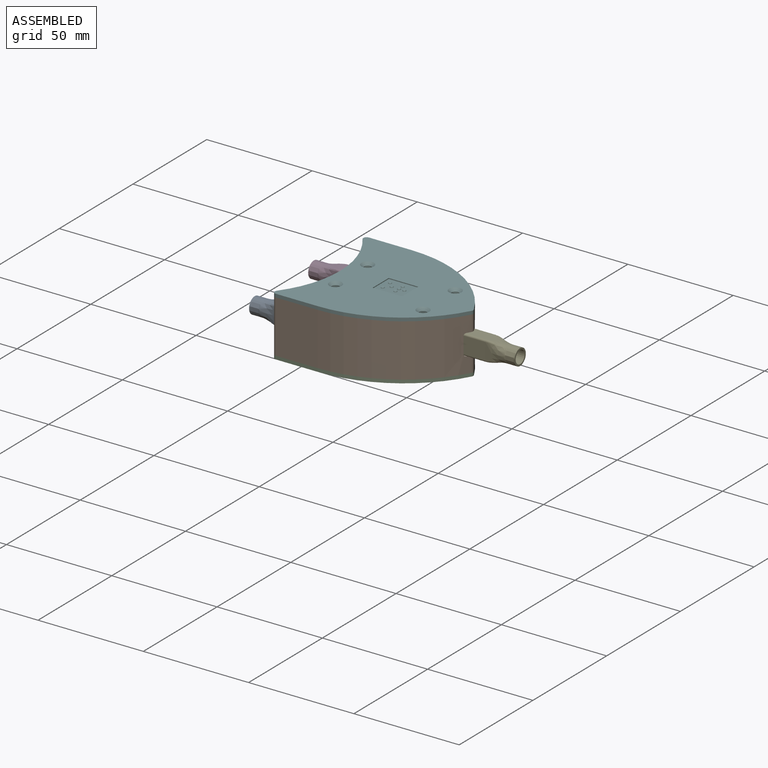
[diagram: assembled view]
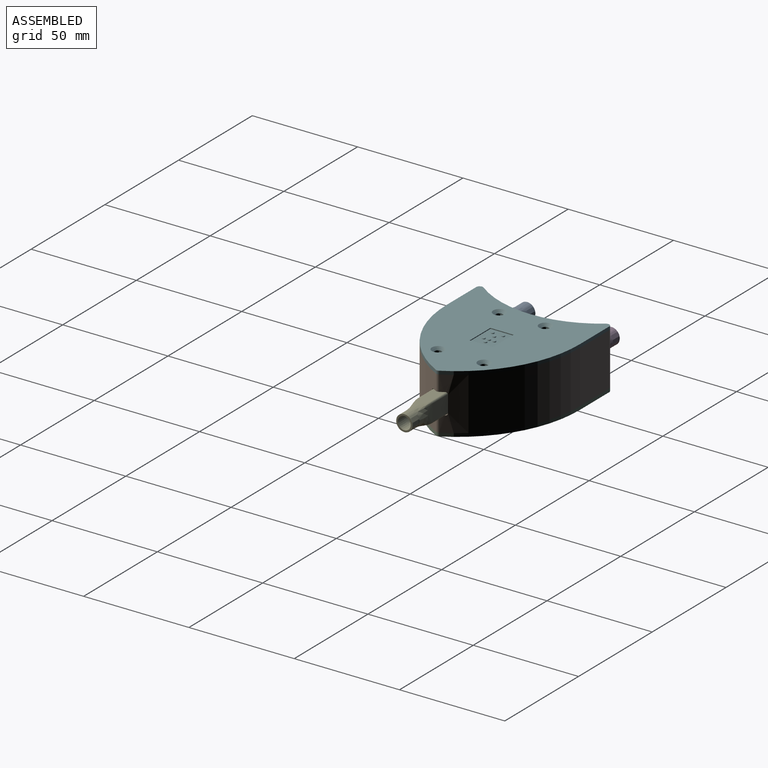
[diagram: assembled view, second angle]
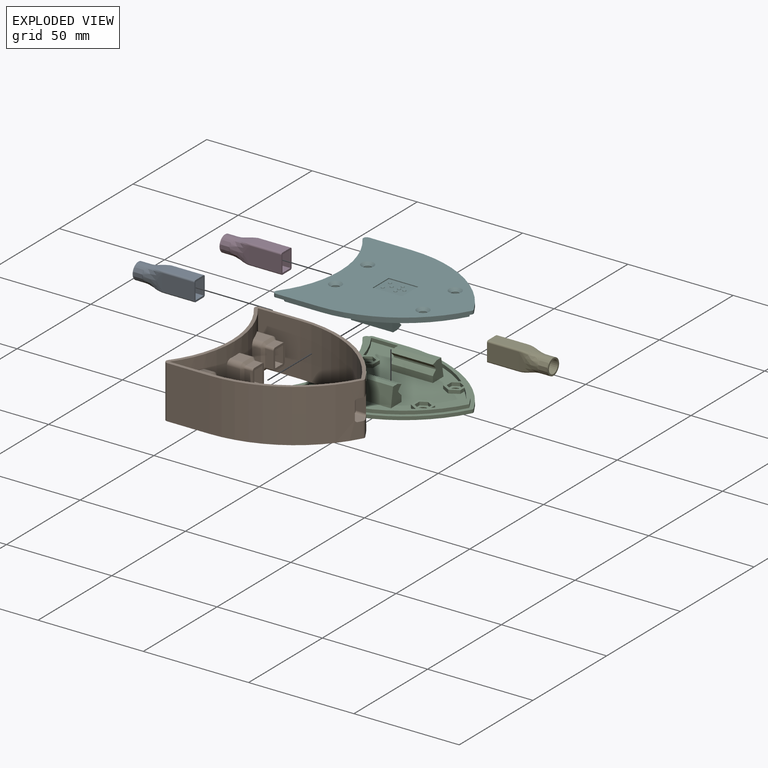
[diagram: exploded view]
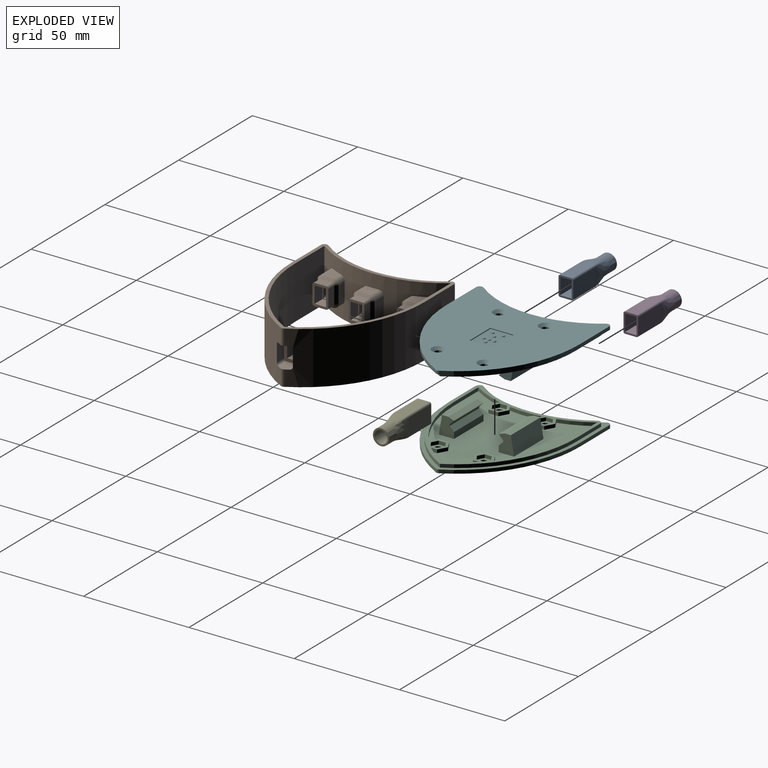
[diagram: exploded view, second angle]
ASSEMBLY  parts=6 mates=4
PART A: 39 faces, bbox 7.7x29.1x9.5 mm
  f0: plane 15.1x5.4mm, normal (0,0,-1), area 81.5mm2, adj f3,f19,f31,f33
  f1: plane 14.1x7.9mm, normal (-1,0,0), area 111.4mm2, adj f2,f3,f7,f9
  f2: plane 14.1x5.4mm, normal (0,0,1), area 76.1mm2, adj f1,f3,f8,f9
  f3: plane 9.5x7mm, normal (0,-1,0), area 23.3mm2, adj f0,f1,f2,f4,f5,f6,f7,f8
  f4: plane 15.1x7.9mm, normal (-1,0,0), area 119.3mm2, adj f3,f21,f31,f35
  f5: plane 15.1x7.9mm, normal (1,0,0), area 119.3mm2, adj f3,f16,f33,f37
  f6: plane 15.1x5.4mm, normal (0,0,1), area 81.5mm2, adj f3,f14,f35,f37
  f7: plane 14.1x5.4mm, normal (0,0,-1), area 76.1mm2, adj f1,f3,f8,f9
  f8: plane 14.1x7.9mm, normal (1,0,0), area 111.4mm2, adj f2,f3,f7,f9
  f9: plane 7.9x5.4mm, normal (0,-1,0), area 10mm2, adj f1,f2,f7,f8,f10,f11,f12,f13
  f10: plane 7.1x1mm, normal (-1,0,0), area 7.1mm2, adj f9,f11,f13,f17
  f11: plane 4.6x1mm, normal (0,0,-1), area 4.6mm2, adj f9,f10,f12,f15
  f12: plane 7.1x1mm, normal (1,0,0), area 7.1mm2, adj f9,f11,f13,f20
  f13: plane 4.6x1mm, normal (0,0,1), area 4.6mm2, adj f9,f10,f12,f18
  f14: bspline ~9x7mm, area 45.2mm2, adj f6,f26,f36,f38
  f15: bspline ~9x4.6mm, area 36.4mm2, adj f11,f17,f20,f22
  f16: bspline ~9.5x9mm, area 69.4mm2, adj f5,f27,f34,f38
  f17: bspline ~9x7.1mm, area 58.2mm2, adj f10,f15,f18,f29
  f18: bspline ~9x4.6mm, area 36.4mm2, adj f13,f17,f20,f24
  f19: bspline ~9x7mm, area 45.2mm2, adj f0,f28,f32,f34
  f20: bspline ~9x7.1mm, area 58.2mm2, adj f12,f15,f18,f23
  f21: bspline ~9.5x9mm, area 69.4mm2, adj f4,f25,f32,f36
  f22: extruded ~5x3.32mm, area 17.5mm2, adj f15,f23,f29,f30
  f23: extruded ~5.12x5mm, area 30.4mm2, adj f20,f22,f24,f30
  f24: extruded ~5x3.32mm, area 17.5mm2, adj f18,f23,f29,f30
  f25: extruded ~6.46x5mm, area 38.3mm2, adj f21,f26,f28,f30
  f26: extruded ~5x4.19mm, area 22.1mm2, adj f14,f25,f27,f30
  f27: extruded ~6.46x5mm, area 38.3mm2, adj f16,f26,f28,f30
  f28: extruded ~5x4.19mm, area 22.1mm2, adj f19,f25,f27,f30
  f29: extruded ~5.12x5mm, area 30.4mm2, adj f17,f22,f24,f30
  f30: plane 7.7x7.7mm, normal (0,1,0), area 17.3mm2, adj f22,f23,f24,f25,f26,f27,f28,f29
  f31: cylinder r=0.8mm len=15.1mm, axis (0,-1,0), area 19mm2, adj f0,f3,f4,f32
  f32: bspline ~10.88x1.52mm, area 4.5mm2, adj f19,f21,f31
  f33: cylinder r=0.8mm len=15.1mm, axis (0,1,0), area 19mm2, adj f0,f3,f5,f34
  f34: bspline ~10.88x1.52mm, area 4.5mm2, adj f16,f19,f33
  f35: cylinder r=0.8mm len=15.1mm, axis (0,1,0), area 19mm2, adj f3,f4,f6,f36
  f36: bspline ~10.88x1.52mm, area 4.5mm2, adj f14,f21,f35
  f37: cylinder r=0.8mm len=15.1mm, axis (0,-1,0), area 19mm2, adj f3,f5,f6,f38
  f38: bspline ~10.88x1.52mm, area 4.5mm2, adj f14,f16,f37
PART B: 188 faces, bbox 73.2x63.2x25 mm
  f0: cylinder r=58.27mm len=51.41mm, axis (0,0,-1), area 1540.4mm2, adj f1,f2,f7,f11,f12,f180,f184,f185
  f1: cylinder r=1.6mm len=7.45mm, axis (0,0,-1), area 11.7mm2, adj f0,f3,f12,f184
  f2: cylinder r=1.6mm len=7.45mm, axis (0,0,-1), area 11.7mm2, adj f0,f3,f7,f180
  f3: cylinder r=58.27mm len=51.41mm, axis (0,0,-1), area 1540.4mm2, adj f1,f2,f7,f9,f12,f180,f181,f182
  f4: cylinder r=56.67mm len=50mm, axis (0,0,-1), area 1464.5mm2, adj f5,f7,f8,f12,f168,f174,f175,f178
  f5: cylinder r=56.67mm len=50mm, axis (0,0,-1), area 1464.5mm2, adj f4,f7,f12,f13,f169,f172,f173,f178
  f6: cylinder r=50mm len=60mm, axis (0,0,-1), area 1243.7mm2, adj f7,f8,f12,f13,f34,f35,f36,f37
  f7: plane 73.2x63.2mm, normal (0,0,1), area 371mm2, adj f0,f2,f3,f4,f5,f6,f8,f9
  f8: plane 25x20mm, normal (0,1,0), area 500mm2, adj f4,f6,f7,f12
  f9: plane 25x20mm, normal (0,1,0), area 500mm2, adj f3,f7,f10,f12
  f10: cylinder r=1.6mm len=25mm, axis (0,0,-1), area 88.6mm2, adj f7,f9,f12,f14
  f11: plane 25x20mm, normal (0,-1,0), area 500mm2, adj f0,f7,f12,f15
  f12: plane 73.2x63.2mm, normal (0,0,-1), area 371mm2, adj f0,f1,f3,f4,f5,f6,f8,f9
  f13: plane 25x20mm, normal (0,-1,0), area 500mm2, adj f5,f6,f7,f12
  f14: cylinder r=48.4mm len=58.08mm, axis (0,0,-1), area 1314.7mm2, adj f7,f10,f12,f15,f16,f17,f18,f19
  f15: cylinder r=1.6mm len=25mm, axis (0,0,-1), area 88.6mm2, adj f7,f11,f12,f14
  f16: cylinder r=1.1mm len=6.95mm, axis (1,0,0), area 11.9mm2, adj f14,f17,f21,f78
  f17: plane 7.9x6.95mm, normal (0,-1,0), area 54.9mm2, adj f14,f16,f18,f78
  f18: cylinder r=1.1mm len=6.95mm, axis (1,0,0), area 11.9mm2, adj f14,f17,f19,f78
  f19: plane 6.88x5.4mm, normal (0,0,-1), area 36.9mm2, adj f14,f18,f20,f78
  f20: cylinder r=1.1mm len=6.95mm, axis (1,0,0), area 11.9mm2, adj f14,f19,f22,f78
  f21: plane 6.88x5.4mm, normal (0,0,1), area 36.9mm2, adj f14,f16,f23,f78
  f22: plane 7.9x6.95mm, normal (0,1,0), area 54.9mm2, adj f14,f20,f23,f78
  f23: cylinder r=1.1mm len=6.95mm, axis (1,0,0), area 11.9mm2, adj f14,f21,f22,f78
  f24: plane 8.28x5.44mm, normal (0,0,1), area 37.8mm2, adj f14,f25,f113,f134
  f25: cylinder r=1.1mm len=8.89mm, axis (1,0,0), area 14.8mm2, adj f14,f24,f26,f113
  f26: plane 8.89x7.9mm, normal (0,-1,0), area 70.2mm2, adj f14,f25,f27,f113
  f27: cylinder r=1.1mm len=8.89mm, axis (-1,0,0), area 14.8mm2, adj f14,f26,f28,f113
  f28: plane 8.28x5.44mm, normal (0,0,-1), area 37.8mm2, adj f14,f27,f113,f136
  f29: cylinder r=1.1mm len=8.89mm, axis (1,0,0), area 14.8mm2, adj f14,f30,f33,f40
  f30: plane 8.89x7.9mm, normal (0,1,0), area 70.2mm2, adj f14,f29,f31,f40
  f31: cylinder r=1.1mm len=8.89mm, axis (-1,0,0), area 14.8mm2, adj f14,f30,f32,f40
  f32: plane 8.28x5.44mm, normal (0,0,1), area 37.8mm2, adj f14,f31,f40,f61
  f33: plane 8.28x5.44mm, normal (0,0,-1), area 37.8mm2, adj f14,f29,f40,f63
  f34: cylinder r=2.3mm len=8.53mm, axis (-1,0,0), area 28.6mm2, adj f6,f35,f42,f66
  f35: plane 8.53x7.9mm, normal (0,-1,0), area 67.4mm2, adj f6,f34,f36,f64
  f36: cylinder r=2.3mm len=8.53mm, axis (-1,0,0), area 28.6mm2, adj f6,f35,f45,f65
  f37: plane 7.9x4.12mm, normal (0,1,0), area 32.6mm2, adj f6,f38,f39,f71
  f38: cylinder r=2.3mm len=4.91mm, axis (-1,0,0), area 16.3mm2, adj f6,f37,f42,f70
  f39: cylinder r=2.3mm len=4.91mm, axis (-1,0,0), area 16.3mm2, adj f6,f37,f45,f69
  f40: plane 10.1x7.6mm, normal (-1,0,0), area 43.1mm2, adj f29,f30,f31,f32,f33,f43,f44,f46
  f41: plane 7.9x5.4mm, normal (1,0,0), area 10mm2, adj f43,f44,f46,f47,f48,f49,f50,f59
  f42: plane 7.28x5.4mm, normal (0,0,1), area 32.6mm2, adj f6,f34,f38,f68
  f43: plane 4.6x0.8mm, normal (0,0,1), area 3.7mm2, adj f40,f41,f44,f46
  f44: plane 7.1x0.8mm, normal (0,-1,0), area 5.7mm2, adj f40,f41,f43,f47
  f45: plane 7.28x5.4mm, normal (0,0,-1), area 32.6mm2, adj f6,f36,f39,f67
  f46: plane 7.1x0.8mm, normal (0,1,0), area 5.7mm2, adj f40,f41,f43,f47
  f47: plane 4.6x0.8mm, normal (0,0,-1), area 3.7mm2, adj f40,f41,f44,f46
  f48: plane 5.4x5.2mm, normal (0,0,-1), area 28.1mm2, adj f41,f49,f59,f60
  f49: plane 7.9x5.2mm, normal (0,-1,0), area 41.1mm2, adj f41,f48,f50,f60
  f50: plane 5.4x5.2mm, normal (0,0,1), area 28.1mm2, adj f41,f49,f59,f60
  f51: cylinder r=1.1mm len=4mm, axis (-1,0,0), area 6.9mm2, adj f52,f58,f60,f69
  f52: plane 7.9x4mm, normal (0,1,0), area 31.6mm2, adj f51,f53,f60,f71
  f53: cylinder r=1.1mm len=4mm, axis (-1,0,0), area 6.9mm2, adj f52,f54,f60,f70
  f54: plane 5.4x4mm, normal (0,0,1), area 21.6mm2, adj f53,f55,f60,f68
  f55: cylinder r=1.1mm len=4mm, axis (-1,0,0), area 6.9mm2, adj f54,f56,f60,f66
  f56: plane 7.9x4mm, normal (0,-1,0), area 31.6mm2, adj f55,f57,f60,f64
  f57: cylinder r=1.1mm len=4mm, axis (-1,0,0), area 6.9mm2, adj f56,f58,f60,f65
  f58: plane 5.4x4mm, normal (0,0,-1), area 21.6mm2, adj f51,f57,f60,f67
  f59: plane 7.9x5.2mm, normal (0,1,0), area 41.1mm2, adj f41,f48,f50,f60
  f60: plane 10.1x7.6mm, normal (1,0,0), area 33.1mm2, adj f48,f49,f50,f51,f52,f53,f54,f55
  f61: cylinder r=1.1mm len=5.81mm, axis (1,0,0), area 9.5mm2, adj f14,f32,f40,f62
  f62: plane 7.9x5.41mm, normal (0,-1,0), area 42.8mm2, adj f14,f40,f61,f63
  f63: cylinder r=1.1mm len=5.81mm, axis (1,0,0), area 9.5mm2, adj f14,f33,f40,f62
  f64: plane 7.9x1.2mm, normal (0.71,-0.71,0), area 13.4mm2, adj f35,f56,f65,f66
  f65: cone r=1.1mm half-angle=45deg, axis (-1,0,0), area 4.5mm2, adj f36,f57,f64,f67
  f66: cone r=1.1mm half-angle=45deg, axis (-1,0,0), area 4.5mm2, adj f34,f55,f64,f68
  f67: plane 5.4x1.2mm, normal (0.71,0,-0.71), area 9.2mm2, adj f45,f58,f65,f69
  f68: plane 5.4x1.2mm, normal (0.71,0,0.71), area 9.2mm2, adj f42,f54,f66,f70
  f69: cone r=1.1mm half-angle=45deg, axis (-1,0,0), area 4.5mm2, adj f39,f51,f67,f71
  f70: cone r=1.1mm half-angle=45deg, axis (-1,0,0), area 4.5mm2, adj f38,f53,f68,f71
  f71: plane 7.9x1.2mm, normal (0.71,0.71,0), area 13.4mm2, adj f37,f52,f69,f70
  f72: plane 7.9x6.25mm, normal (0,1,0), area 49.4mm2, adj f6,f73,f77,f106
  f73: cylinder r=2.3mm len=6.25mm, axis (-1,0,0), area 22.3mm2, adj f6,f72,f80,f105
  f74: cylinder r=2.3mm len=6.25mm, axis (-1,0,0), area 22.3mm2, adj f6,f75,f80,f101
  f75: plane 7.9x6.25mm, normal (0,-1,0), area 49.4mm2, adj f6,f74,f76,f99
  f76: cylinder r=2.3mm len=6.25mm, axis (-1,0,0), area 22.3mm2, adj f6,f75,f83,f100
  f77: cylinder r=2.3mm len=6.25mm, axis (-1,0,0), area 22.3mm2, adj f6,f72,f83,f104
  f78: plane 10.1x7.6mm, normal (-1,0,0), area 43.1mm2, adj f16,f17,f18,f19,f20,f21,f22,f23
  f79: plane 7.9x5.4mm, normal (1,0,0), area 10mm2, adj f81,f82,f84,f85,f86,f87,f88,f97
  f80: plane 6.07x5.4mm, normal (0,0,1), area 32.5mm2, adj f6,f73,f74,f103
  f81: plane 4.6x0.8mm, normal (0,0,1), area 3.7mm2, adj f78,f79,f82,f84
  f82: plane 7.1x0.8mm, normal (0,-1,0), area 5.7mm2, adj f78,f79,f81,f85
  f83: plane 6.07x5.4mm, normal (0,0,-1), area 32.5mm2, adj f6,f76,f77,f102
  f84: plane 7.1x0.8mm, normal (0,1,0), area 5.7mm2, adj f78,f79,f81,f85
  f85: plane 4.6x0.8mm, normal (0,0,-1), area 3.7mm2, adj f78,f79,f82,f84
  f86: plane 5.4x5.2mm, normal (0,0,-1), area 28.1mm2, adj f79,f87,f97,f98
  f87: plane 7.9x5.2mm, normal (0,-1,0), area 41.1mm2, adj f79,f86,f88,f98
  f88: plane 5.4x5.2mm, normal (0,0,1), area 28.1mm2, adj f79,f87,f97,f98
  f89: cylinder r=1.1mm len=4mm, axis (-1,0,0), area 6.9mm2, adj f90,f96,f98,f104
  f90: plane 7.9x4mm, normal (0,1,0), area 31.6mm2, adj f89,f91,f98,f106
  f91: cylinder r=1.1mm len=4mm, axis (-1,0,0), area 6.9mm2, adj f90,f92,f98,f105
  f92: plane 5.4x4mm, normal (0,0,1), area 21.6mm2, adj f91,f93,f98,f103
  f93: cylinder r=1.1mm len=4mm, axis (-1,0,0), area 6.9mm2, adj f92,f94,f98,f101
  f94: plane 7.9x4mm, normal (0,-1,0), area 31.6mm2, adj f93,f95,f98,f99
  f95: cylinder r=1.1mm len=4mm, axis (-1,0,0), area 6.9mm2, adj f94,f96,f98,f100
  f96: plane 5.4x4mm, normal (0,0,-1), area 21.6mm2, adj f89,f95,f98,f102
  f97: plane 7.9x5.2mm, normal (0,1,0), area 41.1mm2, adj f79,f86,f88,f98
  f98: plane 10.1x7.6mm, normal (1,0,0), area 33.1mm2, adj f86,f87,f88,f89,f90,f91,f92,f93
  f99: plane 7.9x1.2mm, normal (0.71,-0.71,0), area 13.4mm2, adj f75,f94,f100,f101
  f100: cone r=1.1mm half-angle=45deg, axis (-1,0,0), area 4.5mm2, adj f76,f95,f99,f102
  f101: cone r=1.1mm half-angle=45deg, axis (-1,0,0), area 4.5mm2, adj f74,f93,f99,f103
  f102: plane 5.4x1.2mm, normal (0.71,0,-0.71), area 9.2mm2, adj f83,f96,f100,f104
  f103: plane 5.4x1.2mm, normal (0.71,0,0.71), area 9.2mm2, adj f80,f92,f101,f105
  f104: cone r=1.1mm half-angle=45deg, axis (-1,0,0), area 4.5mm2, adj f77,f89,f102,f106
  f105: cone r=1.1mm half-angle=45deg, axis (-1,0,0), area 4.5mm2, adj f73,f91,f103,f106
  f106: plane 7.9x1.2mm, normal (0.71,0.71,0), area 13.4mm2, adj f72,f90,f104,f105
  f107: plane 8.53x7.9mm, normal (0,1,0), area 67.4mm2, adj f6,f108,f109,f144
  f108: cylinder r=2.3mm len=8.53mm, axis (-1,0,0), area 28.6mm2, adj f6,f107,f115,f143
  f109: cylinder r=2.3mm len=8.53mm, axis (-1,0,0), area 28.6mm2, adj f6,f107,f118,f142
  f110: cylinder r=2.3mm len=4.91mm, axis (-1,0,0), area 16.3mm2, adj f6,f111,f115,f139
  f111: plane 7.9x4.12mm, normal (0,-1,0), area 32.6mm2, adj f6,f110,f112,f137
  f112: cylinder r=2.3mm len=4.91mm, axis (-1,0,0), area 16.3mm2, adj f6,f111,f118,f138
  f113: plane 10.1x7.6mm, normal (-1,0,0), area 43.1mm2, adj f24,f25,f26,f27,f28,f116,f117,f119
  f114: plane 7.9x5.4mm, normal (1,0,0), area 10mm2, adj f116,f117,f119,f120,f121,f122,f123,f132
  f115: plane 7.28x5.4mm, normal (0,0,1), area 32.6mm2, adj f6,f108,f110,f141
  f116: plane 4.6x0.8mm, normal (0,0,1), area 3.7mm2, adj f113,f114,f117,f119
  f117: plane 7.1x0.8mm, normal (0,-1,0), area 5.7mm2, adj f113,f114,f116,f120
  f118: plane 7.28x5.4mm, normal (0,0,-1), area 32.6mm2, adj f6,f109,f112,f140
  f119: plane 7.1x0.8mm, normal (0,1,0), area 5.7mm2, adj f113,f114,f116,f120
  f120: plane 4.6x0.8mm, normal (0,0,-1), area 3.7mm2, adj f113,f114,f117,f119
  f121: plane 5.4x5.2mm, normal (0,0,-1), area 28.1mm2, adj f114,f122,f132,f133
  f122: plane 7.9x5.2mm, normal (0,-1,0), area 41.1mm2, adj f114,f121,f123,f133
  f123: plane 5.4x5.2mm, normal (0,0,1), area 28.1mm2, adj f114,f122,f132,f133
  f124: cylinder r=1.1mm len=4mm, axis (-1,0,0), area 6.9mm2, adj f125,f131,f133,f142
  f125: plane 7.9x4mm, normal (0,1,0), area 31.6mm2, adj f124,f126,f133,f144
  f126: cylinder r=1.1mm len=4mm, axis (-1,0,0), area 6.9mm2, adj f125,f127,f133,f143
  f127: plane 5.4x4mm, normal (0,0,1), area 21.6mm2, adj f126,f128,f133,f141
  f128: cylinder r=1.1mm len=4mm, axis (-1,0,0), area 6.9mm2, adj f127,f129,f133,f139
  f129: plane 7.9x4mm, normal (0,-1,0), area 31.6mm2, adj f128,f130,f133,f137
  f130: cylinder r=1.1mm len=4mm, axis (-1,0,0), area 6.9mm2, adj f129,f131,f133,f138
  f131: plane 5.4x4mm, normal (0,0,-1), area 21.6mm2, adj f124,f130,f133,f140
  f132: plane 7.9x5.2mm, normal (0,1,0), area 41.1mm2, adj f114,f121,f123,f133
  f133: plane 10.1x7.6mm, normal (1,0,0), area 33.1mm2, adj f121,f122,f123,f124,f125,f126,f127,f128
  f134: cylinder r=1.1mm len=5.81mm, axis (1,0,0), area 9.5mm2, adj f14,f24,f113,f135
  f135: plane 7.9x5.41mm, normal (0,1,0), area 42.8mm2, adj f14,f113,f134,f136
  f136: cylinder r=1.1mm len=5.81mm, axis (1,0,0), area 9.5mm2, adj f14,f28,f113,f135
  f137: plane 7.9x1.2mm, normal (0.71,-0.71,0), area 13.4mm2, adj f111,f129,f138,f139
  f138: cone r=1.1mm half-angle=45deg, axis (-1,0,0), area 4.5mm2, adj f112,f130,f137,f140
  f139: cone r=1.1mm half-angle=45deg, axis (-1,0,0), area 4.5mm2, adj f110,f128,f137,f141
  f140: plane 5.4x1.2mm, normal (0.71,0,-0.71), area 9.2mm2, adj f118,f131,f138,f142
  f141: plane 5.4x1.2mm, normal (0.71,0,0.71), area 9.2mm2, adj f115,f127,f139,f143
  f142: cone r=1.1mm half-angle=45deg, axis (-1,0,0), area 4.5mm2, adj f109,f124,f140,f144
  f143: cone r=1.1mm half-angle=45deg, axis (-1,0,0), area 4.5mm2, adj f108,f126,f141,f144
  f144: plane 7.9x1.2mm, normal (0.71,0.71,0), area 13.4mm2, adj f107,f125,f142,f143
  f145: plane 7.9x1.2mm, normal (-0.71,-0.71,0), area 13.4mm2, adj f146,f147,f161,f175
  f146: cone r=1.1mm half-angle=45deg, axis (1,0,0), area 4.5mm2, adj f145,f148,f160,f174
  f147: cone r=1.1mm half-angle=45deg, axis (1,0,0), area 4.5mm2, adj f145,f149,f162,f168
  f148: plane 5.4x1.2mm, normal (-0.71,0,0.71), area 9.2mm2, adj f146,f150,f159,f179
  f149: plane 5.4x1.2mm, normal (-0.71,0,-0.71), area 9.2mm2, adj f147,f151,f155,f178
  f150: cone r=1.1mm half-angle=45deg, axis (1,0,0), area 4.5mm2, adj f148,f152,f158,f173
  f151: cone r=1.1mm half-angle=45deg, axis (1,0,0), area 4.5mm2, adj f149,f152,f156,f169
  f152: plane 7.9x1.2mm, normal (-0.71,0.71,0), area 13.4mm2, adj f150,f151,f157,f172
  f153: plane 10.1x7.6mm, normal (-1,0,0), area 33.1mm2, adj f154,f155,f156,f157,f158,f159,f160,f161
  f154: plane 7.9x5.2mm, normal (0,-1,0), area 41.1mm2, adj f153,f163,f165,f176
  f155: plane 5.4x4mm, normal (0,0,-1), area 21.6mm2, adj f149,f153,f156,f162
  f156: cylinder r=1.1mm len=4mm, axis (1,0,0), area 6.9mm2, adj f151,f153,f155,f157
  f157: plane 7.9x4mm, normal (0,1,0), area 31.6mm2, adj f152,f153,f156,f158
  f158: cylinder r=1.1mm len=4mm, axis (1,0,0), area 6.9mm2, adj f150,f153,f157,f159
  f159: plane 5.4x4mm, normal (0,0,1), area 21.6mm2, adj f148,f153,f158,f160
  f160: cylinder r=1.1mm len=4mm, axis (1,0,0), area 6.9mm2, adj f146,f153,f159,f161
  f161: plane 7.9x4mm, normal (0,-1,0), area 31.6mm2, adj f145,f153,f160,f162
  f162: cylinder r=1.1mm len=4mm, axis (1,0,0), area 6.9mm2, adj f147,f153,f155,f161
  f163: plane 5.4x5.2mm, normal (0,0,1), area 28.1mm2, adj f153,f154,f164,f176
  f164: plane 7.9x5.2mm, normal (0,1,0), area 41.1mm2, adj f153,f163,f165,f176
  f165: plane 5.4x5.2mm, normal (0,0,-1), area 28.1mm2, adj f153,f154,f164,f176
  f166: plane 4.6x0.8mm, normal (0,0,-1), area 3.7mm2, adj f167,f170,f176,f177
  f167: plane 7.1x0.8mm, normal (0,-1,0), area 5.7mm2, adj f166,f171,f176,f177
  f168: cylinder r=2.3mm len=4.46mm, axis (1,0,0), area 13.5mm2, adj f4,f147,f175,f178
  f169: cylinder r=2.3mm len=4.46mm, axis (1,0,0), area 13.5mm2, adj f5,f151,f172,f178
  f170: plane 7.1x0.8mm, normal (0,1,0), area 5.7mm2, adj f166,f171,f176,f177
  f171: plane 4.6x0.8mm, normal (0,0,1), area 3.7mm2, adj f167,f170,f176,f177
  f172: plane 7.9x2.99mm, normal (0,1,0), area 23.6mm2, adj f5,f152,f169,f173
  f173: cylinder r=2.3mm len=4.46mm, axis (1,0,0), area 13.5mm2, adj f5,f150,f172,f179
  f174: cylinder r=2.3mm len=4.46mm, axis (1,0,0), area 13.5mm2, adj f4,f146,f175,f179
  f175: plane 7.9x2.99mm, normal (0,-1,0), area 23.6mm2, adj f4,f145,f168,f174
  f176: plane 7.9x5.4mm, normal (-1,0,0), area 10mm2, adj f154,f163,f164,f165,f166,f167,f170,f171
  f177: plane 10.1x7.6mm, normal (1,0,0), area 43.1mm2, adj f166,f167,f170,f171,f180,f181,f182,f183
  f178: plane 6x5.4mm, normal (0,0,-1), area 28.3mm2, adj f4,f5,f149,f168,f169
  f179: plane 6x5.4mm, normal (0,0,1), area 28.3mm2, adj f4,f5,f148,f173,f174
  f180: plane 6.8x5.4mm, normal (0,0,-1), area 33.8mm2, adj f0,f2,f3,f177,f181,f186
  f181: cylinder r=1.1mm len=5.53mm, axis (1,0,0), area 9mm2, adj f3,f177,f180,f182
  f182: plane 7.9x4.87mm, normal (0,-1,0), area 38.4mm2, adj f3,f177,f181,f183
  f183: cylinder r=1.1mm len=5.53mm, axis (1,0,0), area 9mm2, adj f3,f177,f182,f184
  f184: plane 6.8x5.4mm, normal (0,0,1), area 33.8mm2, adj f0,f1,f3,f177,f183,f187
  f185: plane 7.9x4.87mm, normal (0,1,0), area 38.4mm2, adj f0,f177,f186,f187
  f186: cylinder r=1.1mm len=5.53mm, axis (1,0,0), area 9mm2, adj f0,f177,f180,f185
  f187: cylinder r=1.1mm len=5.53mm, axis (1,0,0), area 9mm2, adj f0,f177,f184,f185
PART C: 121 faces, bbox 73.2x63.2x10.7 mm
  f0: plane 64.5x56.4mm, normal (0,0,-1), area 2032.4mm2, adj f9,f10,f11,f12,f13,f14,f30,f31
  f1: sphere r=0.81mm, area 2mm2, adj f95,f102
  f2: sphere r=0.81mm, area 2mm2, adj f95,f101
  f3: sphere r=0.81mm, area 2mm2, adj f95,f100
  f4: sphere r=0.81mm, area 2mm2, adj f95,f99
  f5: sphere r=0.81mm, area 2mm2, adj f95,f98
  f6: sphere r=0.81mm, area 2mm2, adj f95,f97
  f7: sphere r=0.81mm, area 2mm2, adj f95,f96
  f8: plane 73.2x63.2mm, normal (0,0,1), area 3036.2mm2, adj f15,f16,f17,f18,f19,f20,f21,f22
  f9: cylinder r=54.87mm len=35.14mm, axis (0,0,1), area 61mm2, adj f0,f31,f34,f79
  f10: cylinder r=54.87mm len=35.14mm, axis (0,0,1), area 61mm2, adj f0,f30,f34,f68
  f11: cylinder r=54.87mm len=11.37mm, axis (0,0,1), area 22.7mm2, adj f0,f32,f34,f69
  f12: cylinder r=51.8mm len=15.4mm, axis (0,0,1), area 24.7mm2, adj f0,f34,f41,f54
  f13: cylinder r=51.8mm len=14.77mm, axis (0,0,1), area 26mm2, adj f0,f31,f34,f55
  f14: cylinder r=51.8mm len=14.77mm, axis (0,0,1), area 26mm2, adj f0,f30,f34,f42
  f15: cylinder r=48.4mm len=58.08mm, axis (0,0,-1), area 99.7mm2, adj f8,f16,f22,f23
  f16: cylinder r=1.6mm len=2.56mm, axis (0,0,-1), area 5.7mm2, adj f8,f15,f17,f23
  f17: plane 20x1.6mm, normal (0,-1,0), area 32mm2, adj f8,f16,f18,f23
  f18: cylinder r=58.27mm len=51.41mm, axis (0,0,-1), area 100.8mm2, adj f8,f17,f19,f23
  f19: cylinder r=1.6mm len=1.6mm, axis (0,0,-1), area 2.5mm2, adj f8,f18,f20,f23
  f20: cylinder r=58.27mm len=51.41mm, axis (0,0,-1), area 100.8mm2, adj f8,f19,f21,f23
  f21: plane 20x1.6mm, normal (0,1,0), area 32mm2, adj f8,f20,f22,f23
  f22: cylinder r=1.6mm len=2.56mm, axis (0,0,-1), area 5.7mm2, adj f8,f15,f21,f23
  f23: plane 73.2x63.2mm, normal (0,0,-1), area 420.3mm2, adj f15,f16,f17,f18,f19,f20,f21,f22
  f24: cylinder r=56.47mm len=49.77mm, axis (0,0,1), area 97.5mm2, adj f23,f25,f33,f34
  f25: cylinder r=56.47mm len=49.77mm, axis (0,0,1), area 97.5mm2, adj f23,f24,f26,f34
  f26: plane 16.55x1.6mm, normal (0,1,0), area 26.5mm2, adj f23,f25,f27,f34
  f27: cylinder r=1.6mm len=2.47mm, axis (0,0,1), area 5.5mm2, adj f23,f26,f28,f34
  f28: cylinder r=50.2mm len=54.66mm, axis (0,0,1), area 92.5mm2, adj f23,f27,f29,f34
  f29: cylinder r=1.6mm len=2.47mm, axis (0,0,1), area 5.5mm2, adj f23,f28,f33,f34
  f30: plane 16.55x1.6mm, normal (0,1,0), area 26.5mm2, adj f0,f10,f14,f34
  f31: plane 16.55x1.6mm, normal (0,-1,0), area 26.5mm2, adj f0,f9,f13,f34
  f32: cylinder r=54.87mm len=11.37mm, axis (0,0,1), area 22.7mm2, adj f0,f11,f34,f78
  f33: plane 16.55x1.6mm, normal (0,-1,0), area 26.5mm2, adj f23,f24,f29,f34
  f34: plane 67.92x59.6mm, normal (0,0,-1), area 441.3mm2, adj f9,f10,f11,f12,f13,f14,f24,f25
  f35: plane 3.35x1.6mm, normal (1,0,0), area 5.4mm2, adj f34,f36,f45,f46
  f36: plane 2.9x1.67mm, normal (0.5,-0.87,0), area 5.4mm2, adj f34,f35,f37,f46
  f37: plane 2.9x1.67mm, normal (-0.5,-0.87,0), area 5.4mm2, adj f34,f36,f38,f46
  f38: plane 3.35x1.6mm, normal (-1,0,0), area 5.4mm2, adj f34,f37,f39,f46
  f39: plane 2.9x1.67mm, normal (-0.5,0.87,0), area 5.4mm2, adj f34,f38,f45,f46
  f40: plane 4.1x2.37mm, normal (0.5,0.87,0), area 7.6mm2, adj f0,f34,f41,f44
  f41: plane 2.65x1.6mm, normal (-0.5,0.87,0), area 4.9mm2, adj f0,f12,f34,f40
  f42: plane 3.84x2.22mm, normal (-0.5,-0.87,0), area 7.1mm2, adj f0,f14,f34,f43
  f43: plane 4.1x2.37mm, normal (0.5,-0.87,0), area 7.6mm2, adj f0,f34,f42,f44
  f44: plane 4.73x1.6mm, normal (1,0,0), area 7.6mm2, adj f0,f34,f40,f43
  f45: plane 2.9x1.67mm, normal (0.5,0.87,0), area 5.4mm2, adj f34,f35,f39,f46
  f46: plane 6.7x5.8mm, normal (0,0,-1), area 20.1mm2, adj f35,f36,f37,f38,f39,f45,f83
  f47: plane 4.1x2.37mm, normal (0.5,-0.87,0), area 7.6mm2, adj f0,f34,f48,f54
  f48: plane 4.73x1.6mm, normal (1,0,0), area 7.6mm2, adj f0,f34,f47,f49
  f49: plane 4.1x2.37mm, normal (0.5,0.87,0), area 7.6mm2, adj f0,f34,f48,f55
  f50: plane 3.35x1.6mm, normal (-1,0,0), area 5.4mm2, adj f34,f51,f53,f58
  f51: plane 2.9x1.67mm, normal (-0.5,0.87,0), area 5.4mm2, adj f34,f50,f56,f58
  f52: plane 2.9x1.67mm, normal (0.5,-0.87,0), area 5.4mm2, adj f34,f53,f57,f58
  f53: plane 2.9x1.67mm, normal (-0.5,-0.87,0), area 5.4mm2, adj f34,f50,f52,f58
  f54: plane 2.65x1.6mm, normal (-0.5,-0.87,0), area 4.9mm2, adj f0,f12,f34,f47
  f55: plane 3.84x2.22mm, normal (-0.5,0.87,0), area 7.1mm2, adj f0,f13,f34,f49
  f56: plane 2.9x1.67mm, normal (0.5,0.87,0), area 5.4mm2, adj f34,f51,f57,f58
  f57: plane 3.35x1.6mm, normal (1,0,0), area 5.4mm2, adj f34,f52,f56,f58
  f58: plane 6.7x5.8mm, normal (0,0,-1), area 20.1mm2, adj f50,f51,f52,f53,f56,f57,f85
  f59: plane 3.35x1.6mm, normal (1,0,0), area 5.4mm2, adj f34,f60,f65,f70
  f60: plane 2.9x1.67mm, normal (0.5,-0.87,0), area 5.4mm2, adj f34,f59,f61,f70
  f61: plane 2.9x1.67mm, normal (-0.5,-0.87,0), area 5.4mm2, adj f34,f60,f66,f70
  f62: plane 4.1x2.37mm, normal (0.5,0.87,0), area 7.6mm2, adj f0,f34,f63,f69
  f63: plane 4.1x2.37mm, normal (-0.5,0.87,0), area 7.6mm2, adj f0,f34,f62,f64
  f64: plane 4.73x1.6mm, normal (-1,0,0), area 7.6mm2, adj f0,f34,f63,f68
  f65: plane 2.9x1.67mm, normal (0.5,0.87,0), area 5.4mm2, adj f34,f59,f67,f70
  f66: plane 3.35x1.6mm, normal (-1,0,0), area 5.4mm2, adj f34,f61,f67,f70
  f67: plane 2.9x1.67mm, normal (-0.5,0.87,0), area 5.4mm2, adj f34,f65,f66,f70
  f68: plane 3.8x2.2mm, normal (-0.5,-0.87,0), area 7mm2, adj f0,f10,f34,f64
  f69: plane 2.83x1.6mm, normal (1,0,0), area 4.5mm2, adj f0,f11,f34,f62
  f70: plane 6.7x5.8mm, normal (0,0,-1), area 20.1mm2, adj f59,f60,f61,f65,f66,f67,f89
  f71: plane 4.1x2.37mm, normal (-0.5,-0.87,0), area 7.6mm2, adj f0,f34,f72,f77
  f72: plane 4.1x2.37mm, normal (0.5,-0.87,0), area 7.6mm2, adj f0,f34,f71,f78
  f73: plane 2.9x1.67mm, normal (-0.5,0.87,0), area 5.4mm2, adj f34,f74,f81,f82
  f74: plane 2.9x1.67mm, normal (0.5,0.87,0), area 5.4mm2, adj f34,f73,f75,f82
  f75: plane 3.35x1.6mm, normal (1,0,0), area 5.4mm2, adj f34,f74,f76,f82
  f76: plane 2.9x1.67mm, normal (0.5,-0.87,0), area 5.4mm2, adj f34,f75,f80,f82
  f77: plane 4.73x1.6mm, normal (-1,0,0), area 7.6mm2, adj f0,f34,f71,f79
  f78: plane 2.83x1.6mm, normal (1,0,0), area 4.5mm2, adj f0,f32,f34,f72
  f79: plane 3.8x2.2mm, normal (-0.5,0.87,0), area 7mm2, adj f0,f9,f34,f77
  f80: plane 2.9x1.67mm, normal (-0.5,-0.87,0), area 5.4mm2, adj f34,f76,f81,f82
  f81: plane 3.35x1.6mm, normal (-1,0,0), area 5.4mm2, adj f34,f73,f80,f82
  f82: plane 6.7x5.8mm, normal (0,0,-1), area 20.1mm2, adj f73,f74,f75,f76,f80,f81,f87
  f83: cylinder r=1.7mm len=3.4mm, axis (0,0,1), area 3.7mm2, adj f46,f84
  f84: cone r=1.7mm half-angle=45deg, axis (0,0,1), area 25.8mm2, adj f8,f83
  f85: cylinder r=1.7mm len=3.4mm, axis (0,0,1), area 3.7mm2, adj f58,f86
  f86: cone r=1.7mm half-angle=45deg, axis (0,0,1), area 25.8mm2, adj f8,f85
  f87: cylinder r=1.7mm len=3.4mm, axis (0,0,1), area 3.7mm2, adj f82,f88
  f88: cone r=1.7mm half-angle=45deg, axis (0,0,1), area 25.8mm2, adj f8,f87
  f89: cylinder r=1.7mm len=3.4mm, axis (0,0,1), area 3.7mm2, adj f70,f90
  f90: cone r=1.7mm half-angle=45deg, axis (0,0,1), area 25.8mm2, adj f8,f89
  f91: plane 14x0.4mm, normal (0,-1,0), area 5.6mm2, adj f8,f92,f94,f95
  f92: plane 11x0.4mm, normal (1,0,0), area 4.4mm2, adj f8,f91,f93,f95
  f93: plane 14x0.4mm, normal (0,1,0), area 5.6mm2, adj f8,f92,f94,f95
  f94: plane 11x0.4mm, normal (-1,0,0), area 4.4mm2, adj f8,f91,f93,f95
  f95: plane 14x11mm, normal (0,0,1), area 139.9mm2, adj f1,f2,f3,f4,f5,f6,f7,f91
  f96: plane 1.26x1.26mm, normal (0,0,1), area 1.2mm2, adj f7
  f97: plane 1.26x1.26mm, normal (0,0,1), area 1.2mm2, adj f6
  f98: plane 1.26x1.26mm, normal (0,0,1), area 1.2mm2, adj f5
  f99: plane 1.26x1.26mm, normal (0,0,1), area 1.2mm2, adj f4
  f100: plane 1.26x1.26mm, normal (0,0,1), area 1.2mm2, adj f3
  f101: plane 1.26x1.26mm, normal (0,0,1), area 1.2mm2, adj f2
  f102: plane 1.26x1.26mm, normal (0,0,1), area 1.2mm2, adj f1
  f103: plane 20x2.93mm, normal (0,-1,0), area 58.6mm2, adj f0,f104,f110,f111
  f104: plane 20x2.07mm, normal (0,-0.71,-0.71), area 58.6mm2, adj f103,f105,f110,f111
  f105: plane 20x0.7mm, normal (0,-1,0), area 14mm2, adj f104,f106,f110,f111
  f106: plane 20x2.07mm, normal (0,-0.71,0.71), area 58.6mm2, adj f105,f107,f110,f111
  f107: plane 20x2.75mm, normal (0,-0.34,-0.94), area 58.6mm2, adj f106,f108,f110,f111
  f108: plane 20x2.93mm, normal (0,0,-1), area 58.6mm2, adj f107,f109,f110,f111
  f109: plane 20x8.77mm, normal (0,0.98,-0.17), area 178.2mm2, adj f0,f108,f110,f111
  f110: plane 8.77x7.23mm, normal (1,0,0), area 49.5mm2, adj f0,f103,f104,f105,f106,f107,f108,f109
  f111: plane 8.77x7.23mm, normal (-1,0,0), area 49.5mm2, adj f0,f103,f104,f105,f106,f107,f108,f109
  f112: plane 20x8.77mm, normal (0,-0.98,-0.17), area 178.2mm2, adj f0,f113,f119,f120
  f113: plane 20x2.93mm, normal (0,0,-1), area 58.6mm2, adj f112,f114,f119,f120
  f114: plane 20x2.75mm, normal (0,0.34,-0.94), area 58.6mm2, adj f113,f115,f119,f120
  f115: plane 20x2.07mm, normal (0,0.71,0.71), area 58.6mm2, adj f114,f116,f119,f120
  f116: plane 20x0.7mm, normal (0,1,0), area 14mm2, adj f115,f117,f119,f120
  f117: plane 20x2.07mm, normal (0,0.71,-0.71), area 58.6mm2, adj f116,f118,f119,f120
  f118: plane 20x2.93mm, normal (0,1,0), area 58.6mm2, adj f0,f117,f119,f120
  f119: plane 8.77x7.23mm, normal (1,0,0), area 49.5mm2, adj f0,f112,f113,f114,f115,f116,f117,f118
  f120: plane 8.77x7.23mm, normal (-1,0,0), area 49.5mm2, adj f0,f112,f113,f114,f115,f116,f117,f118
PART D: same geometry as A
PART E: same geometry as A
PART F: same geometry as C
PLACE A rot(axis=(0,0,1),90deg) t=(-28.99,-20.03,12.5)mm
PLACE B at identity fixed
PLACE C rot(axis=(1,0,0),180deg) t=(0,0,25)mm
PLACE D rot(axis=(0,0,1),90deg) t=(-28.99,20.03,12.5)mm
PLACE E rot(axis=(0.71,0.71,0),180deg) t=(24.8,0,12.5)mm
PLACE F at identity fixed
MATE fastened C.f23 <-> B.f12  axis (0,0,1) through (-20,-31.6,0)mm
MATE fastened B.f113 <-> D.f3  axis (-1,0,0) through (-28.99,20.03,12.5)mm
MATE fastened B.f40 <-> A.f3  axis (-1,0,0) through (-28.99,-20.03,12.5)mm
MATE fastened B.f177 <-> E.f3  axis (1,0,0) through (24.8,0,12.5)mm
